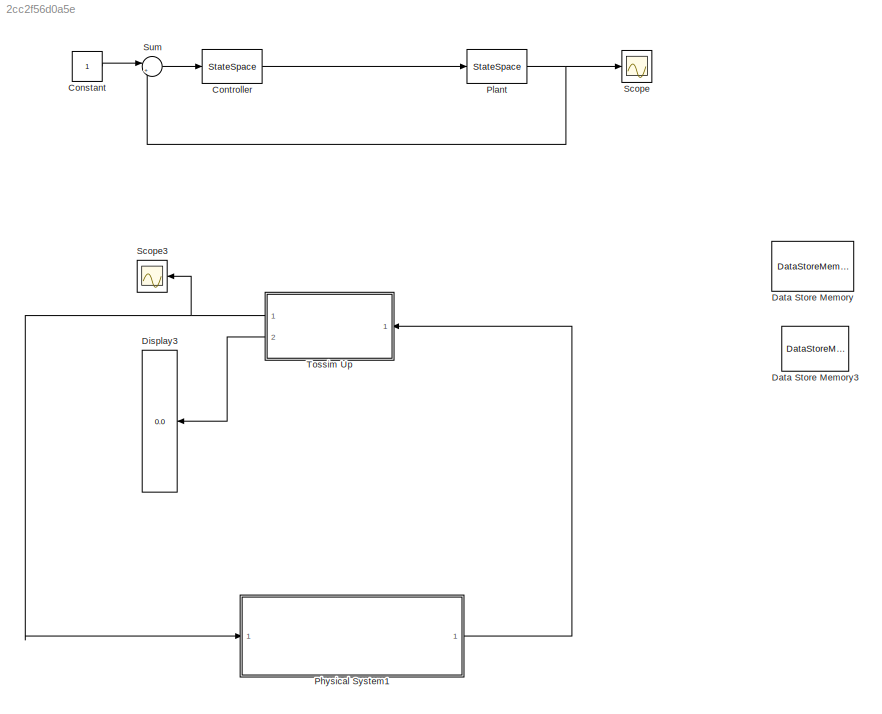
MODEL slx_2cc2f56d0a5e
KIND model
CONFIG AbsTol = auto
CONFIG EnableMultiTasking = off
CONFIG FixedStep = auto
CONFIG MaxStep = auto
CONFIG MinStep = auto
CONFIG RelTol = 1e-3
CONFIG SampleTimeConstraint = Unconstrained
CONFIG Solver = VariableStepAuto
CONFIG SolverName = VariableStepAuto
CONFIG StartTime = 0.0
CONFIG StopTime = 1000
BLOCK [Constant] Constant
BLOCK [StateSpace] Controller
  A = Ac
  B = Bc
  C = Cc
  D = Dc
  InitialCondition = 0
  Ports = [1, 1]
BLOCK [DataStoreMemory] Data Store Memory
  DataStoreName = ydelay_global
  InitialValue = [1; 1; 1; 1; 1; 1; 1; 1; 1; 1; 1; 1; 1; 1; 1]
  OutDataTypeStr = uint32
  ReadBeforeWriteMsg = warning
  ShowAdditionalParam = off
  SignalType = real
  WriteAfterReadMsg = warning
  WriteAfterWriteMsg = warning
BLOCK [DataStoreMemory] Data Store Memory3
  DataStoreName = threshold3
  InitialValue = th3_initial
  OutDataTypeStr = double
  ReadBeforeWriteMsg = warning
  ShowAdditionalParam = off
  SignalType = real
  WriteAfterReadMsg = warning
  WriteAfterWriteMsg = warning
BLOCK [Display] Display3
  Decimation = 1
  Ports = [1]
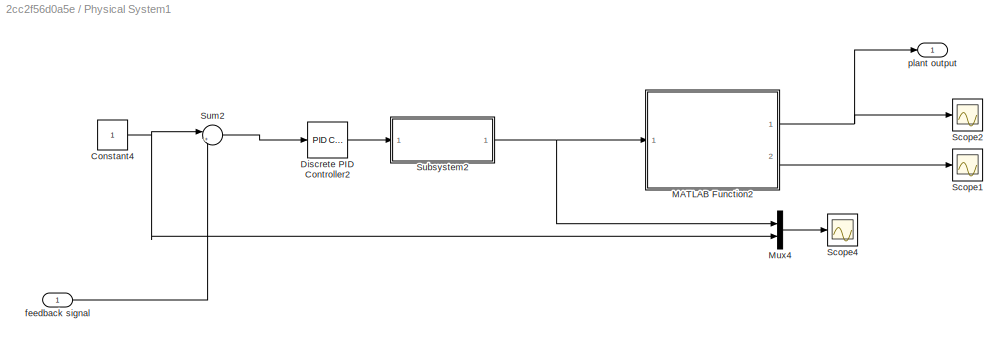
BLOCK [SubSystem] Physical System1 
  Ports = [1, 1]
  RequestExecContextInheritance = off
BLOCK [Constant] Physical System1 /Constant4
BLOCK [Reference] Physical System1 /Discrete PID Controller2  REF=simulink/Continuous/PID Controller
  Ports = [1, 1]
  SourceBlock = simulink/Continuous/PID Controller
  SourceProductBaseCode = SL
  SourceProductName = Simulink
  SourceType = PID 1dof
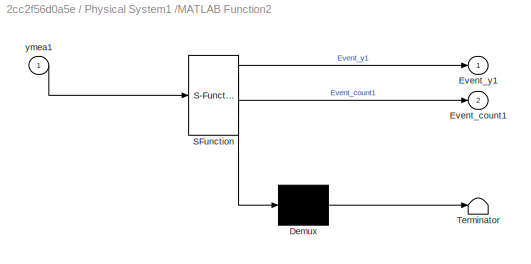
BLOCK [SubSystem] Physical System1 /MATLAB Function2
  ErrorFcn = Stateflow.Translate.translate
  PermitHierarchicalResolution = ExplicitOnly
  Ports = [1, 2]
  RequestExecContextInheritance = off
  SFBlockType = MATLAB Function
  TreatAsAtomicUnit = on
BLOCK [Demux] Physical System1 /MATLAB Function2/ Demux 
  Outputs = 1
  Ports = [1, 1]
BLOCK [S-Function] Physical System1 /MATLAB Function2/ SFunction 
  EnableBusSupport = on
  FunctionName = sf_sfun
  PortCounts = [1 3]
  Ports = [1, 3]
  SFcnIsStateOwnerBlock = off
  SFunctionDeploymentMode = off
  Tag = Stateflow S-Function TestWCPS_v1 2
BLOCK [Terminator] Physical System1 /MATLAB Function2/ Terminator 
BLOCK [Outport] Physical System1 /MATLAB Function2/Event_count1
  IconDisplay = Port number
  Port = 2
BLOCK [Outport] Physical System1 /MATLAB Function2/Event_y1
  IconDisplay = Port number
BLOCK [Inport] Physical System1 /MATLAB Function2/ymea1
  IconDisplay = Port number
BLOCK [Mux] Physical System1 /Mux4
  DisplayOption = bar
  Inputs = 2
  Ports = [2, 1]
BLOCK [Scope] Physical System1 /Scope1
  Floating = off
  NumInputPorts = 1
  Ports = [1]
  ScopeSpecificationString = Simulink.scopes.TimeScopeBlockCfg('CurrentConfiguration', extmgr.ConfigurationSet(extmgr.Configuration('Core','General UI',true),extmgr.Configuration('Core','Source UI',true),extmgr.Configuration('Sources','WiredSimulink',true,'DataLoggingVariableName','ScopeData2'),extmgr.Configuration('Visuals','Time Domain',true,'SerializedDisplays',{struct('MinYLimReal','-1.65688','MaxYLimReal','6.6733','YLabe...<+1484ch>
BLOCK [Scope] Physical System1 /Scope2
  Floating = off
  NumInputPorts = 1
  Ports = [1]
  ScopeSpecificationString = Simulink.scopes.TimeScopeBlockCfg('CurrentConfiguration', extmgr.ConfigurationSet(extmgr.Configuration('Core','General UI',true),extmgr.Configuration('Core','Source UI',true),extmgr.Configuration('Sources','WiredSimulink',true,'DataLoggingVariableName','ScopeData6'),extmgr.Configuration('Visuals','Time Domain',true,'SerializedDisplays',{struct('MinYLimReal','-0.09066','MaxYLimReal','0.16836','YLab...<+1482ch>
BLOCK [Scope] Physical System1 /Scope4
  Floating = off
  NumInputPorts = 1
  Ports = [1]
  ScopeSpecificationString = Simulink.scopes.TimeScopeBlockCfg('CurrentConfiguration', extmgr.ConfigurationSet(extmgr.Configuration('Core','General UI',true),extmgr.Configuration('Core','Source UI',true),extmgr.Configuration('Sources','WiredSimulink',true,'DataLoggingVariableName','ScopeData7'),extmgr.Configuration('Visuals','Time Domain',true,'SerializedDisplays',{struct('MinYLimReal','-0.15102','MaxYLimReal','1.35914','YLab...<+1477ch>
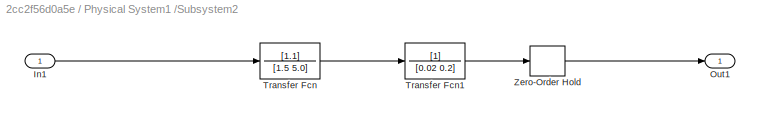
BLOCK [SubSystem] Physical System1 /Subsystem2
  Ports = [1, 1]
  RequestExecContextInheritance = off
BLOCK [Inport] Physical System1 /Subsystem2/In1
  IconDisplay = Port number
BLOCK [Outport] Physical System1 /Subsystem2/Out1
  IconDisplay = Port number
BLOCK [TransferFcn] Physical System1 /Subsystem2/Transfer Fcn
  Denominator = [1.5 5.0]
  Numerator = [1.1]
BLOCK [TransferFcn] Physical System1 /Subsystem2/Transfer Fcn1
  Denominator = [0.02 0.2]
BLOCK [ZeroOrderHold] Physical System1 /Subsystem2/Zero-Order Hold
  SampleTime = delta_t_moter
BLOCK [Sum] Physical System1 /Sum2
  IconShape = round
  InputSameDT = off
  Inputs = |+-
  OutDataTypeStr = Inherit: Inherit via internal rule
  Ports = [2, 1]
  SaturateOnIntegerOverflow = off
BLOCK [Inport] Physical System1 /feedback signal 
  IconDisplay = Port number
BLOCK [Outport] Physical System1 /plant output 
  IconDisplay = Port number
BLOCK [StateSpace] Plant
  A = A
  B = B
  C = C
  D = D
  InitialCondition = 0
  Ports = [1, 1]
BLOCK [Scope] Scope
  Floating = off
  NumInputPorts = 1
  Ports = [1]
  ScopeSpecificationString = Simulink.scopes.TimeScopeBlockCfg('CurrentConfiguration', extmgr.ConfigurationSet(extmgr.Configuration('Core','General UI',true),extmgr.Configuration('Core','Source UI',true),extmgr.Configuration('Sources','WiredSimulink',true),extmgr.Configuration('Visuals','Time Domain',true,'SerializedDisplays',{struct('MinYLimReal','-273220327093935.00000','MaxYLimReal','111935172468380.75','YLabelReal','','Mi...<+1513ch>
BLOCK [Scope] Scope3
  Floating = off
  NumInputPorts = 1
  Ports = [1]
  ScopeSpecificationString = Simulink.scopes.TimeScopeBlockCfg('CurrentConfiguration', extmgr.ConfigurationSet(extmgr.Configuration('Core','General UI',true),extmgr.Configuration('Core','Source UI',true),extmgr.Configuration('Sources','WiredSimulink',true,'DataLoggingVariableName','ScopeData5'),extmgr.Configuration('Visuals','Time Domain',true,'SerializedDisplays',{struct('MinYLimReal','-4.125','MaxYLimReal','37.125','YLabelR...<+1440ch>
BLOCK [Sum] Sum
  IconShape = round
  InputSameDT = off
  Inputs = |+-
  OutDataTypeStr = Inherit: Inherit via internal rule
  Ports = [2, 1]
  SaturateOnIntegerOverflow = off
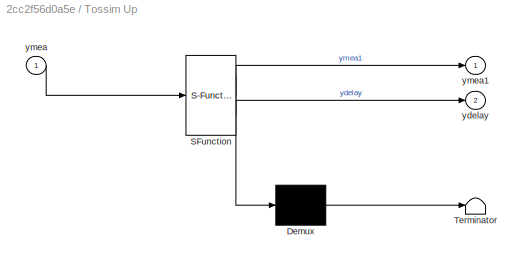
BLOCK [SubSystem] Tossim Up
  ErrorFcn = Stateflow.Translate.translate
  PermitHierarchicalResolution = ExplicitOnly
  Ports = [1, 2]
  RequestExecContextInheritance = off
  SFBlockType = MATLAB Function
  TreatAsAtomicUnit = on
BLOCK [Demux] Tossim Up/ Demux 
  Outputs = 1
  Ports = [1, 1]
BLOCK [S-Function] Tossim Up/ SFunction 
  EnableBusSupport = on
  FunctionName = sf_sfun
  PortCounts = [1 3]
  Ports = [1, 3]
  SFcnIsStateOwnerBlock = off
  SFunctionDeploymentMode = off
  Tag = Stateflow S-Function TestWCPS_v1 1
BLOCK [Terminator] Tossim Up/ Terminator 
BLOCK [Outport] Tossim Up/ydelay
  IconDisplay = Port number
  Port = 2
BLOCK [Inport] Tossim Up/ymea
  IconDisplay = Port number
BLOCK [Outport] Tossim Up/ymea1
  IconDisplay = Port number
LINE Constant:1 -> Sum:1
LINE Controller:1 -> Plant:1
NET Physical System1 /Constant4:1 -> Physical System1 /Mux4:2, Physical System1 /Sum2:1
LINE Physical System1 /Discrete PID Controller2:1 -> Physical System1 /Subsystem2:1
NET Physical System1 /MATLAB Function2:1 -> Physical System1 /Scope2:1, Physical System1 /plant output :1
LINE Physical System1 /MATLAB Function2:2 -> Physical System1 /Scope1:1
LINE Physical System1 /Mux4:1 -> Physical System1 /Scope4:1
LINE Physical System1 /Subsystem2/In1:1 -> Physical System1 /Subsystem2/Transfer Fcn:1
LINE Physical System1 /Subsystem2/Transfer Fcn1:1 -> Physical System1 /Subsystem2/Zero-Order Hold:1
LINE Physical System1 /Subsystem2/Transfer Fcn:1 -> Physical System1 /Subsystem2/Transfer Fcn1:1
LINE Physical System1 /Subsystem2/Zero-Order Hold:1 -> Physical System1 /Subsystem2/Out1:1
NET Physical System1 /Subsystem2:1 -> Physical System1 /MATLAB Function2:1, Physical System1 /Mux4:1
LINE Physical System1 /Sum2:1 -> Physical System1 /Discrete PID Controller2:1
LINE Physical System1 /feedback signal :1 -> Physical System1 /Sum2:2
LINE Physical System1 :1 -> Tossim Up:1
NET Plant:1 -> Scope:1, Sum:2
LINE Sum:1 -> Controller:1
NET Tossim Up:1 -> Physical System1 :1, Scope3:1
LINE Tossim Up:2 -> Display3:1
note: NET lines group one-source signal fan-out (src -> all destinations, sorted); 1:1 wires keep LINE
CHART Tossim Up states=1 transitions=1
  STATE_LABEL 'eML_blk_kernel()'
  STATE_LABEL "SCRIPT:\nfunction [ymea1, ydelay]  = Tossim_block(ymea)\n% Inputs:\n% ymea: measurement from structure\n% Outputs:\n% ymea1: measurement output\n% ydelay: delay traces\npersistent delay1 past_ymea % delay trace\npersistent i Task_period % count\nglobal ydelay_global\n\n\n% allow these matlab functions to be used in Embedded Matlab block\neml.extrinsic('python');\neml.extrinsic('num2str');\neml.extrinsic('str2num...<+1170ch>"
CHART Physical System1
/MATLAB Function2 states=1 transitions=1
  STATE_LABEL 'eML_blk_kernel()'
  STATE_LABEL 'SCRIPT:\nfunction [Event_y1, Event_count1] = event_trigger1(ymea1)\n\npersistent previous_ymea tmp_eventcount\npersistent i %count\nglobal threshold3\n\n\nif isempty(i)\n    i = 0;\n    tmp_eventcount = 0;\n    previous_ymea = 0;\nend\n\ncompare = abs(ymea1 - previous_ymea);\nif (compare) >= threshold3\n    ans = ymea1;\n    previous_ymea = ymea1;\n    tmp_eventcount = tmp_eventcount + 1;\nelse\n    ans = previous_ym...<+67ch>'
